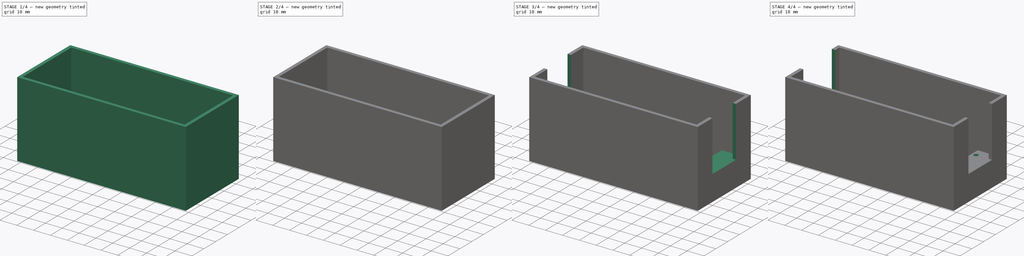
[diagram: build sequence overview — one tinted view per stage of 4, left to right]
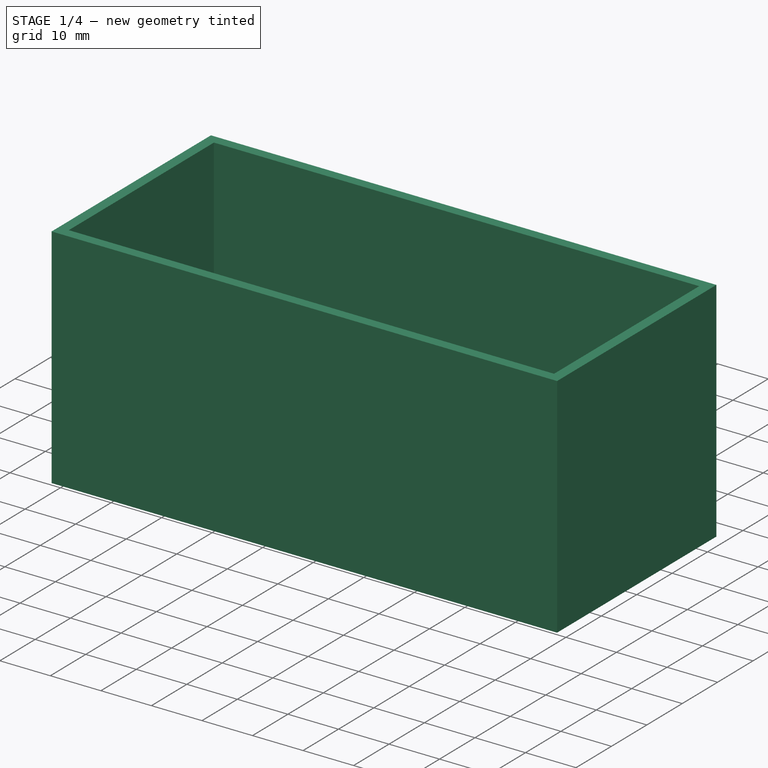
[diagram: stage 1 of 4 — iso view after this stage's code; geometry added in this stage tinted green]
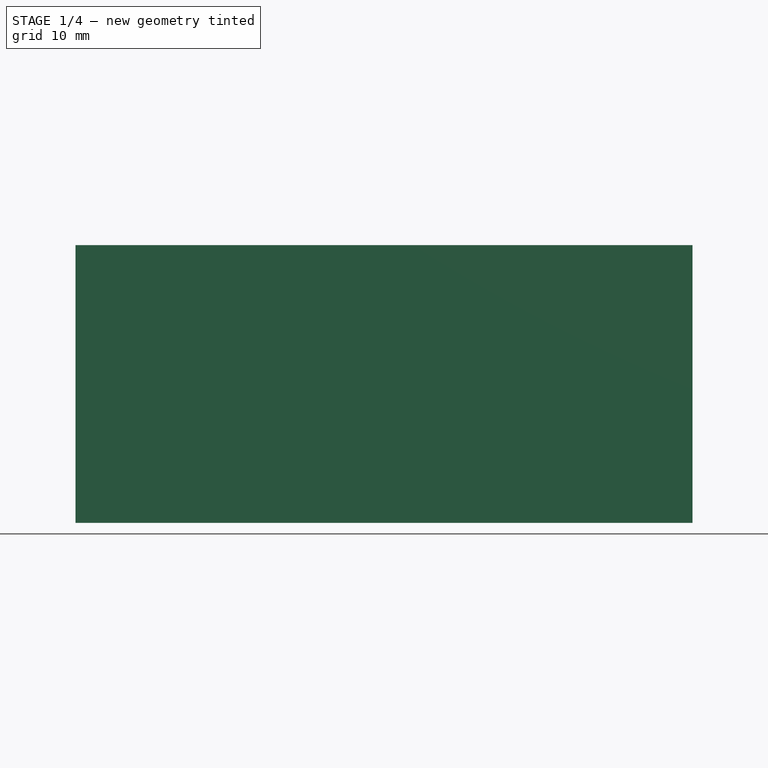
[diagram: stage 1 of 4 — front view after this stage's code; geometry added in this stage tinted green]
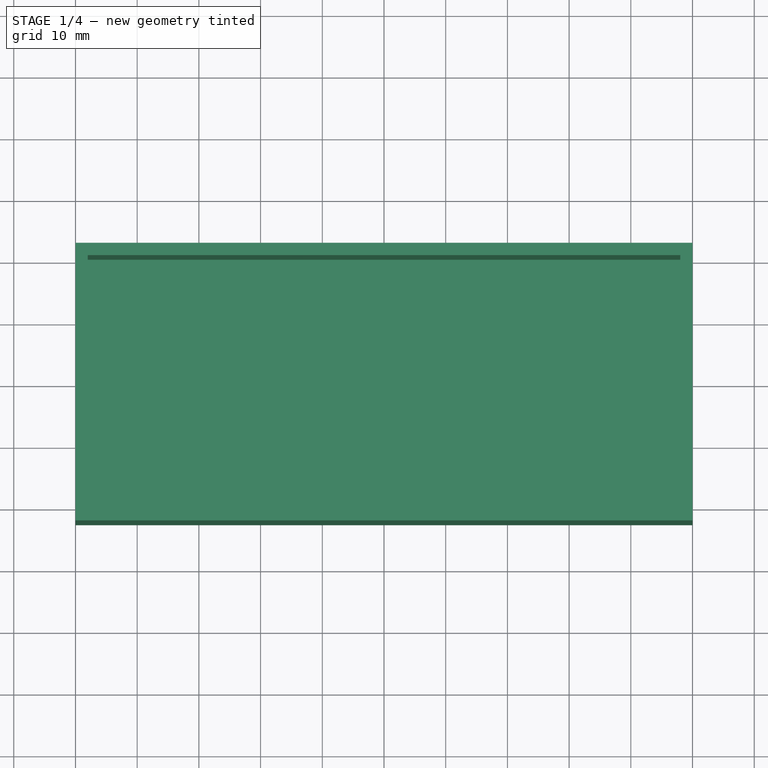
[diagram: stage 1 of 4 — top view after this stage's code; geometry added in this stage tinted green]
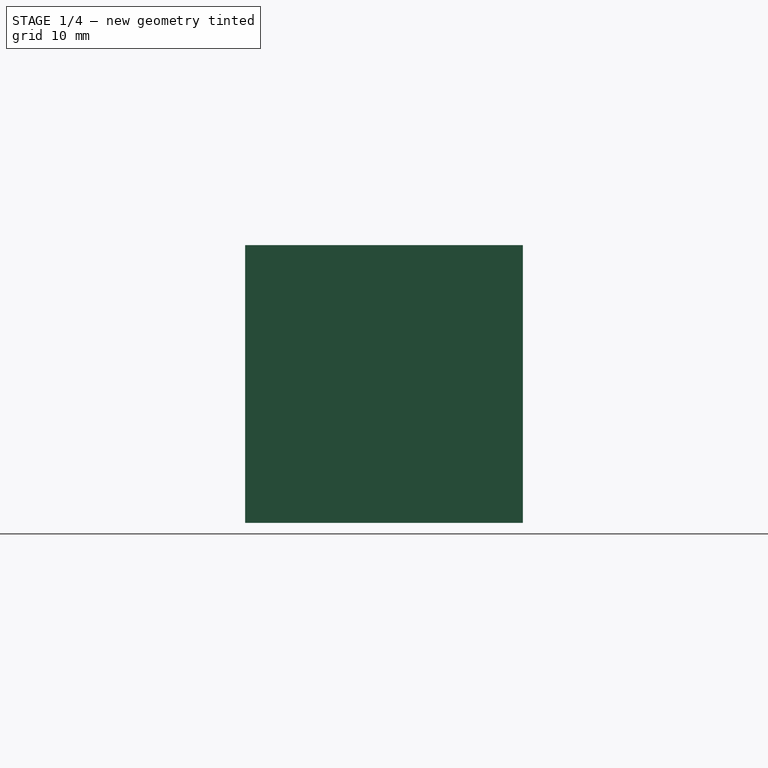
[diagram: stage 1 of 4 — right view after this stage's code; geometry added in this stage tinted green]
FCSTD DOCUMENT  (FreeCAD 0.19R22756 (Git))
Label: 12v-power-supply-holder-development
License: All rights reserved
LicenseURL: http://en.wikipedia.org/wiki/All_rights_reserved
objects: Sketcher::SketchObject×9, PartDesign::Pocket×6, PartDesign::Pad×3, PartDesign::Mirrored×1, PartDesign::Body×1
note: 29 computed .brp shape members not serialized (recipe doc carries the construction recipe); baked Part::Feature solids carry a one-line shape summary decoded from their .brp

FEATURE [Sketcher::SketchObject] Sketch
  MapMode = 5
  Support = -> [XY_Plane]
  expr: Constraints[11] = Constraints[8] / 2
  expr: Constraints[10] = Constraints[9] / 2
  sketch-geometry (4):
    g0: LineSegment StartX=-50 StartY=-22.5 StartZ=0 EndX=50 EndY=-22.5 EndZ=0
    g1: LineSegment StartX=50 StartY=-22.5 StartZ=0 EndX=50 EndY=22.5 EndZ=0
    g2: LineSegment StartX=50 StartY=22.5 StartZ=0 EndX=-50 EndY=22.5 EndZ=0
    g3: LineSegment StartX=-50 StartY=22.5 StartZ=0 EndX=-50 EndY=-22.5 EndZ=0
  constraints (12):
    c: Coincident(g0,g1)
    c: Coincident(g1,g2)
    c: Coincident(g2,g3)
    c: Coincident(g3,g0)
    c: Horizontal(g0)
    c: Horizontal(g2)
    c: Vertical(g1)
    c: Vertical(g3)
    c: Distance(g2) = 100
    c: Distance(g1) = 45
    c: DistanceY(g-1,g2) = 22.5
    c: DistanceX(g-2,g1) = 50
FEATURE [PartDesign::Pad] Pad
  Direction = (1,1,1)
  Length = 45
  Length2 = 100
  Profile = -> Sketch
  Type = 0
FEATURE [Sketcher::SketchObject] Sketch001
  ExternalGeometry = -> [Pad]
  MapMode = 5
  Placement = pos=(0,0,45) rot=(0,0,1;0rad)
  Support = -> [Pad]
  expr: Constraints[11] = Constraints[8]
  expr: Constraints[10] = Constraints[8]
  expr: Constraints[9] = Constraints[8]
  sketch-geometry (4):
    g0: LineSegment StartX=-48 StartY=-20.5 StartZ=0 EndX=48 EndY=-20.5 EndZ=0
    g1: LineSegment StartX=48 StartY=-20.5 StartZ=0 EndX=48 EndY=20.5 EndZ=0
    g2: LineSegment StartX=48 StartY=20.5 StartZ=0 EndX=-48 EndY=20.5 EndZ=0
    g3: LineSegment StartX=-48 StartY=20.5 StartZ=0 EndX=-48 EndY=-20.5 EndZ=0
  constraints (12):
    c: Coincident(g0,g1)
    c: Coincident(g1,g2)
    c: Coincident(g2,g3)
    c: Coincident(g3,g0)
    c: Horizontal(g0)
    c: Horizontal(g2)
    c: Vertical(g1)
    c: Vertical(g3)
    c: Distance(g2,g-3) = 2
    c: Distance(g2,g-4) = 2
    c: Distance(g0,g-5) = 2
    c: Distance(g0,g-6) = 2
FEATURE [PartDesign::Pocket] Pocket
  BaseFeature = -> Pad
  Length = 43
  Length2 = 100
  Profile = -> Sketch001
  Type = 0
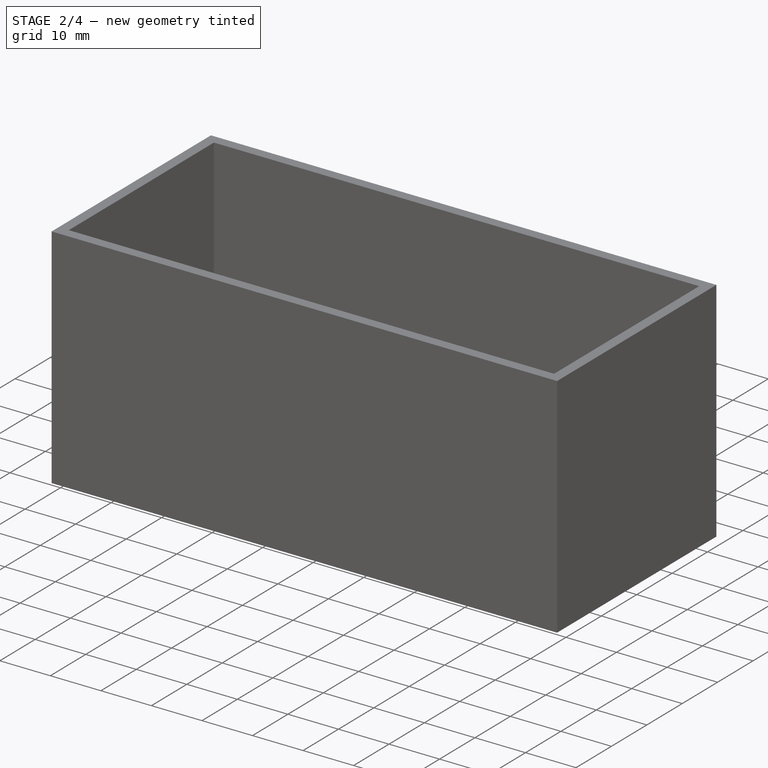
[diagram: stage 2 of 4 — iso view after this stage's code; geometry added in this stage tinted green]
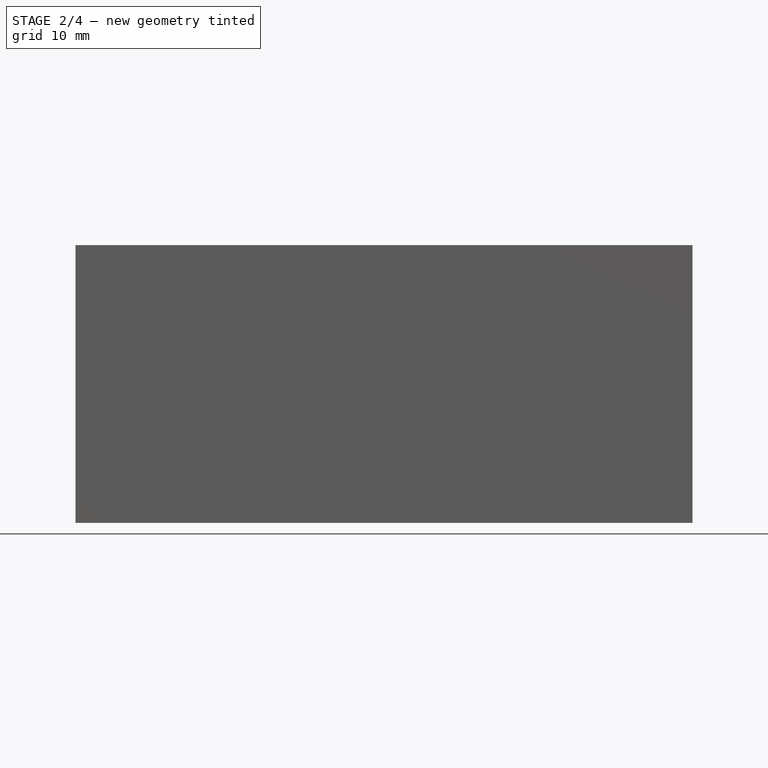
[diagram: stage 2 of 4 — front view after this stage's code; geometry added in this stage tinted green]
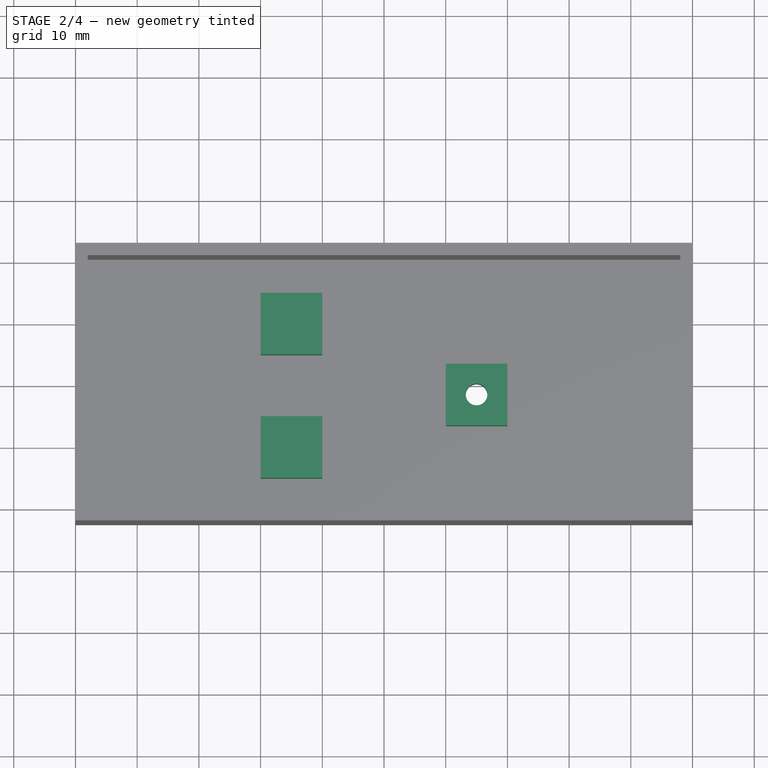
[diagram: stage 2 of 4 — top view after this stage's code; geometry added in this stage tinted green]
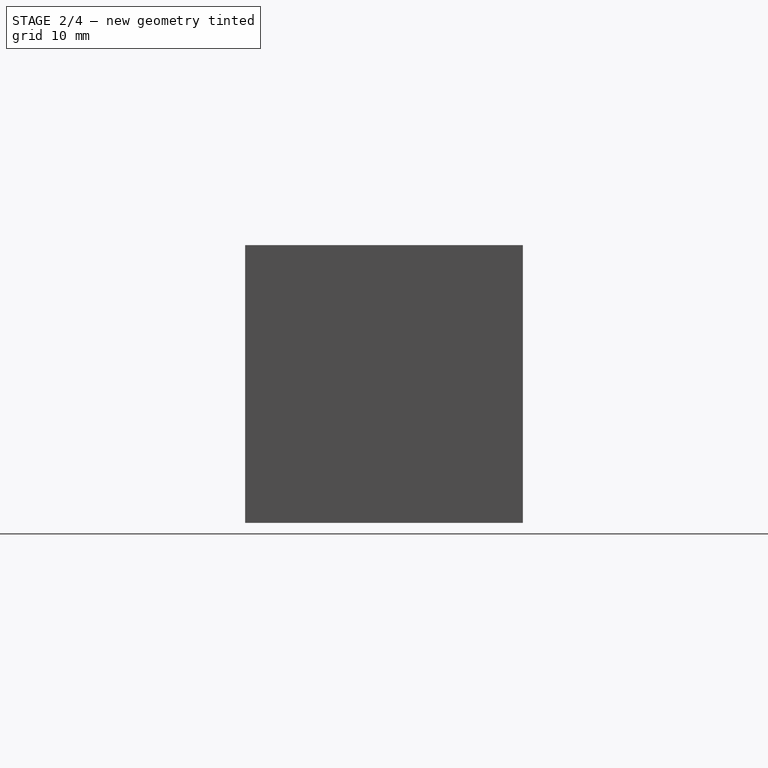
[diagram: stage 2 of 4 — right view after this stage's code; geometry added in this stage tinted green]
FEATURE [Sketcher::SketchObject] Sketch002
  ExternalGeometry = -> [Pocket]
  MapMode = 5
  Placement = pos=(0,0,2) rot=(0,0,1;0rad)
  Support = -> [Pocket]
  expr: Constraints[35] = Constraints[24]
  expr: Constraints[27] = Constraints[24]
  expr: Constraints[32] = Constraints[24] / 2 - 1.5mm
  expr: Constraints[29] = Constraints[24]
  expr: Constraints[26] = Constraints[24]
  expr: Constraints[31] = -Constraints[24] / 2
  expr: Constraints[30] = Constraints[24] * 3 - 2mm
  expr: Constraints[28] = Constraints[24]
  expr: Constraints[25] = Constraints[24]
  sketch-geometry (12):
    g0: LineSegment StartX=10 StartY=-6.5 StartZ=0 EndX=20 EndY=-6.5 EndZ=0
    g1: LineSegment StartX=20 StartY=-6.5 StartZ=0 EndX=20 EndY=3.5 EndZ=0
    g2: LineSegment StartX=20 StartY=3.5 StartZ=0 EndX=10 EndY=3.5 EndZ=0
    g3: LineSegment StartX=10 StartY=3.5 StartZ=0 EndX=10 EndY=-6.5 EndZ=0
    g4: LineSegment StartX=-20 StartY=15 StartZ=0 EndX=-10 EndY=15 EndZ=0
    g5: LineSegment StartX=-10 StartY=15 StartZ=0 EndX=-10 EndY=5 EndZ=0
    g6: LineSegment StartX=-10 StartY=5 StartZ=0 EndX=-20 EndY=5 EndZ=0
    g7: LineSegment StartX=-20 StartY=5 StartZ=0 EndX=-20 EndY=15 EndZ=0
    g8: LineSegment StartX=-20 StartY=-5 StartZ=0 EndX=-10 EndY=-5 EndZ=0
    g9: LineSegment StartX=-10 StartY=-5 StartZ=0 EndX=-10 EndY=-15 EndZ=0
    g10: LineSegment StartX=-10 StartY=-15 StartZ=0 EndX=-20 EndY=-15 EndZ=0
    g11: LineSegment StartX=-20 StartY=-15 StartZ=0 EndX=-20 EndY=-5 EndZ=0
  constraints (36):
    c: Coincident(g0,g1)
    c: Coincident(g1,g2)
    c: Coincident(g2,g3)
    c: Coincident(g3,g0)
    c: Horizontal(g0)
    c: Horizontal(g2)
    c: Vertical(g1)
    c: Vertical(g3)
    c: Coincident(g4,g5)
    c: Coincident(g5,g6)
    c: Coincident(g6,g7)
    c: Coincident(g7,g4)
    c: Horizontal(g4)
    c: Horizontal(g6)
    c: Vertical(g5)
    c: Vertical(g7)
    c: Coincident(g8,g9)
    c: Coincident(g9,g10)
    c: Coincident(g10,g11)
    c: Coincident(g11,g8)
    c: Horizontal(g8)
    c: Horizontal(g10)
    c: Vertical(g9)
    c: Vertical(g11)
    c: Distance(g2) = 10
    c: Distance(g1) = 10
    c: Distance(g4) = 10
    c: Distance(g5) = 10
    c: Distance(g9) = 10
    c: Distance(g8) = 10
    c: Distance(g0,g-3) = 28
    c: DistanceY(g-1,g8) = -5
    c: DistanceY(g-1,g2) = 3.5
    c: Distance(g6,g3) = 30
    c: Vertical(g8,g6)
    c: Distance(g5,g8) = 10
FEATURE [PartDesign::Pad] Pad001
  BaseFeature = -> Pocket
  Direction = (1,1,1)
  Length = 9
  Length2 = 100
  Profile = -> Sketch002
  Type = 0
FEATURE [Sketcher::SketchObject] Sketch003
  ExternalGeometry = -> [Pad001]
  MapMode = 5
  Placement = pos=(0,0,0) rot=(1,0,0;3.14159rad)
  Support = -> [Pad001]
  sketch-geometry (2):
    g0: Circle [constr] CenterX=15 CenterY=1.5 CenterZ=0 NormalX=0 NormalY=0 NormalZ=1 AngleXU=0 Radius=5
    g1: Circle CenterX=15 CenterY=1.5 CenterZ=0 NormalX=0 NormalY=0 NormalZ=1 AngleXU=0 Radius=3
  constraints (5):
    c: Tangent(g0,g-3)
    c: Tangent(g0,g-4)
    c: Tangent(g-5,g0)
    c: Coincident(g1,g0)
    c: Diameter(g1) = 6
FEATURE [PartDesign::Pocket] Pocket001
  BaseFeature = -> Pad001
  Length = 3
  Length2 = 100
  Profile = -> Sketch003
  Type = 0
FEATURE [Sketcher::SketchObject] Sketch004
  ExternalGeometry = -> [Pocket001]
  MapMode = 5
  Placement = pos=(0,0,3) rot=(1,0,0;3.14159rad)
  Support = -> [Pocket001]
  sketch-geometry (1):
    g0: Circle CenterX=15 CenterY=1.5 CenterZ=0 NormalX=0 NormalY=0 NormalZ=1 AngleXU=0 Radius=1.75
  constraints (2):
    c: Coincident(g0,g-3)
    c: Diameter(g0) = 3.5
FEATURE [PartDesign::Pocket] Pocket002
  BaseFeature = -> Pocket001
  Length = 5
  Length2 = 100
  Profile = -> Sketch004
  Type = 1
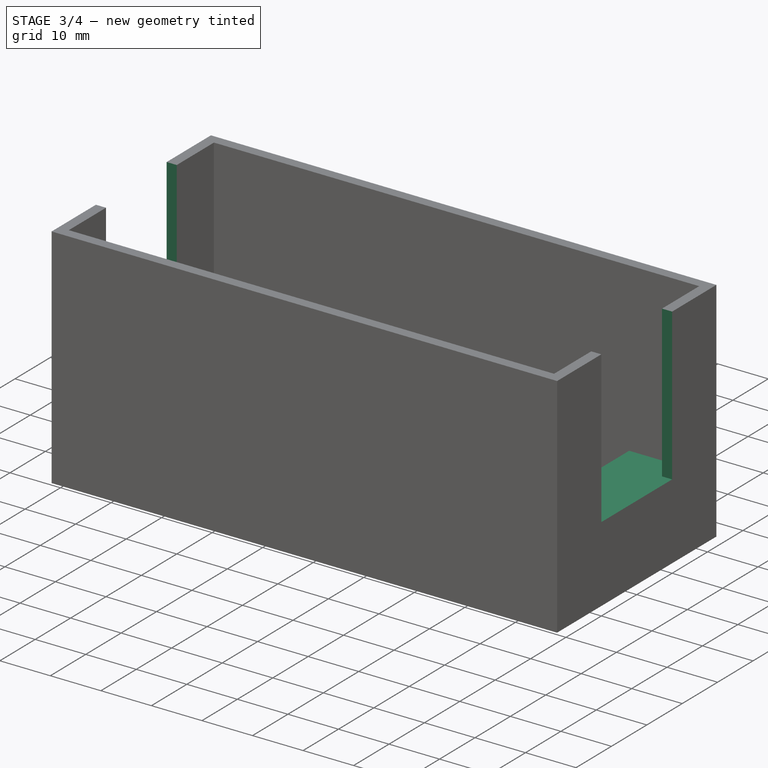
[diagram: stage 3 of 4 — iso view after this stage's code; geometry added in this stage tinted green]
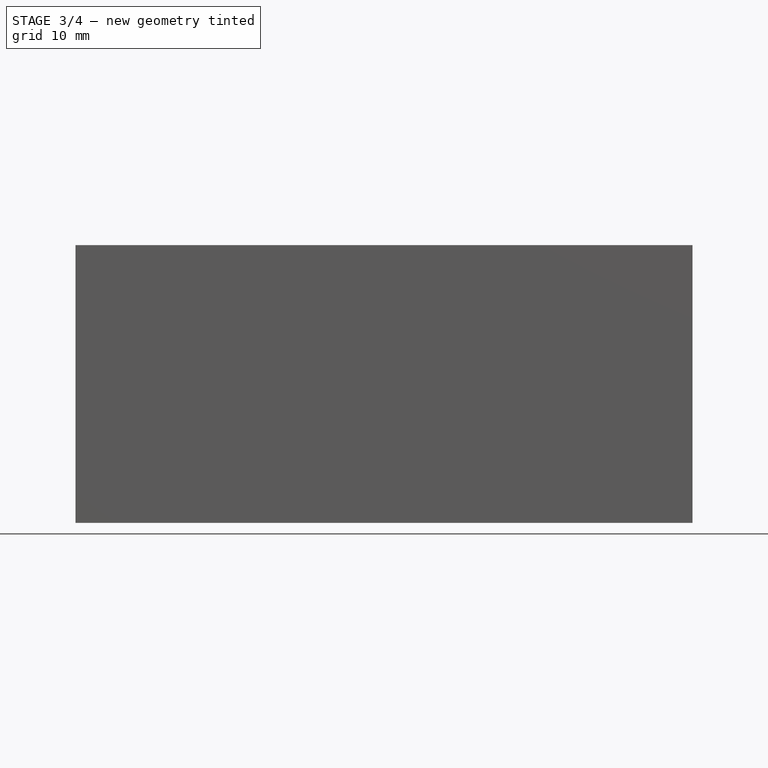
[diagram: stage 3 of 4 — front view after this stage's code; geometry added in this stage tinted green]
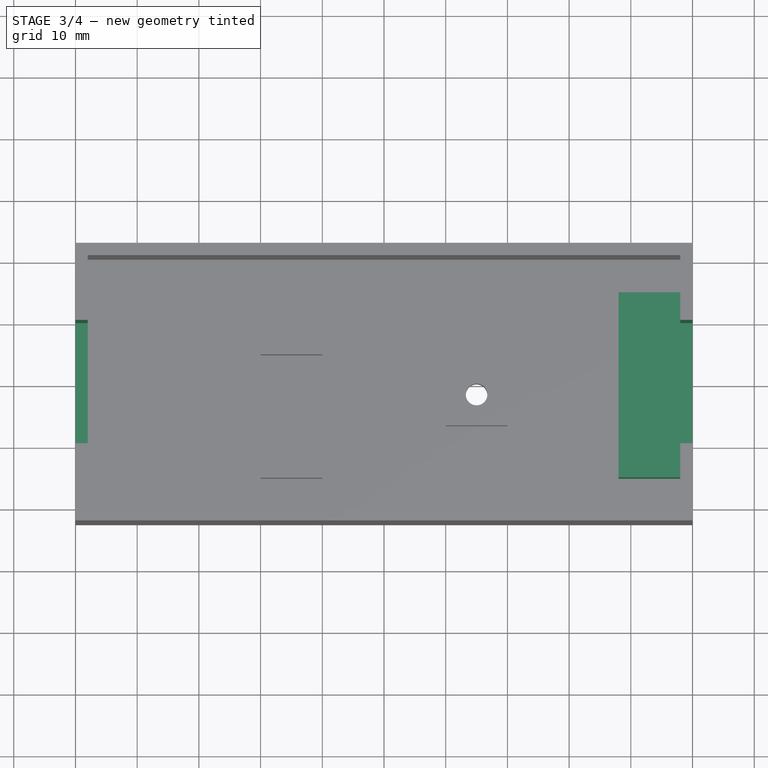
[diagram: stage 3 of 4 — top view after this stage's code; geometry added in this stage tinted green]
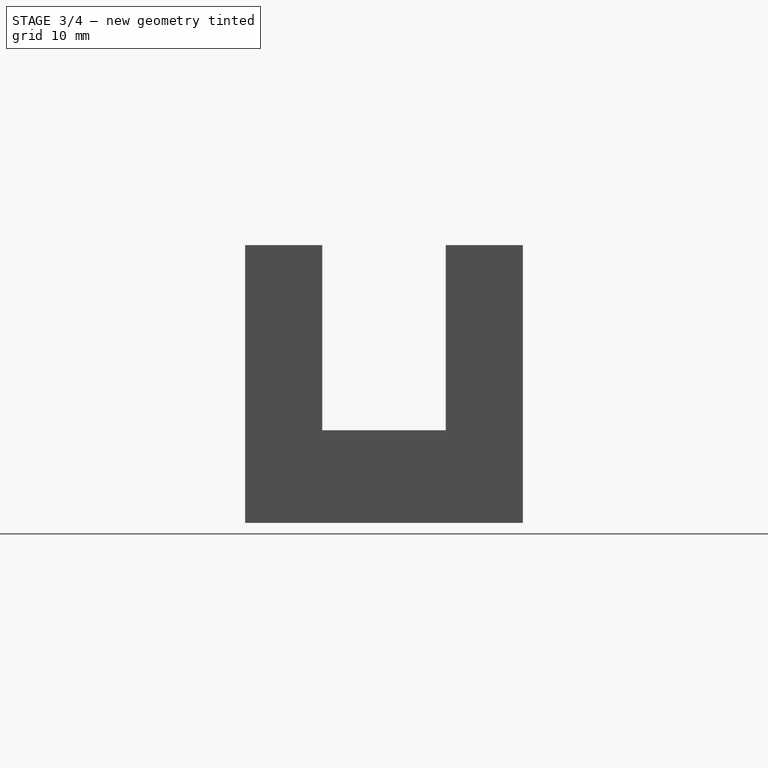
[diagram: stage 3 of 4 — right view after this stage's code; geometry added in this stage tinted green]
FEATURE [Sketcher::SketchObject] Sketch005
  ExternalGeometry = -> [Pocket002]
  MapMode = 5
  Placement = pos=(0,0,45) rot=(0,0,1;0rad)
  Support = -> [Pocket002]
  expr: Constraints[11] = Constraints[10] / 2
  sketch-geometry (4):
    g0: LineSegment StartX=48 StartY=-10 StartZ=0 EndX=50 EndY=-10 EndZ=0
    g1: LineSegment StartX=50 StartY=-10 StartZ=0 EndX=50 EndY=10 EndZ=0
    g2: LineSegment StartX=50 StartY=10 StartZ=0 EndX=48 EndY=10 EndZ=0
    g3: LineSegment StartX=48 StartY=10 StartZ=0 EndX=48 EndY=-10 EndZ=0
  constraints (12):
    c: Coincident(g0,g1)
    c: Coincident(g1,g2)
    c: Coincident(g2,g3)
    c: Coincident(g3,g0)
    c: Horizontal(g0)
    c: Horizontal(g2)
    c: Vertical(g1)
    c: Vertical(g3)
    c: PointOnObject(g0,g-3)
    c: PointOnObject(g1,g-4)
    c: Distance(g1) = 20
    c: DistanceY(g-1,g1) = 10
FEATURE [PartDesign::Pocket] Pocket003
  BaseFeature = -> Pocket002
  Length = 30
  Length2 = 100
  Profile = -> Sketch005
  Type = 0
FEATURE [PartDesign::Mirrored] Mirrored
  BaseFeature = -> Pocket003
  MirrorPlane = -> YZ_Plane
  Originals = -> [Pocket003]
FEATURE [Sketcher::SketchObject] Sketch006
  ExternalGeometry = -> [Mirrored]
  MapMode = 5
  Placement = pos=(0,0,2) rot=(0,0,1;0rad)
  Support = -> [Mirrored]
  sketch-geometry (4):
    g0: LineSegment StartX=48 StartY=15 StartZ=0 EndX=38 EndY=15 EndZ=0
    g1: LineSegment StartX=38 StartY=15 StartZ=0 EndX=38 EndY=-15 EndZ=0
    g2: LineSegment StartX=38 StartY=-15 StartZ=0 EndX=48 EndY=-15 EndZ=0
    g3: LineSegment StartX=48 StartY=-15 StartZ=0 EndX=48 EndY=15 EndZ=0
  constraints (12):
    c: Coincident(g0,g1)
    c: Coincident(g1,g2)
    c: Coincident(g2,g3)
    c: Coincident(g3,g0)
    c: Horizontal(g0)
    c: Horizontal(g2)
    c: Vertical(g1)
    c: Vertical(g3)
    c: PointOnObject(g0,g-3)
    c: Distance(g-5,g0) = 5
    c: Distance(g1) = 30
    c: Distance(g0,g3) = 10
FEATURE [PartDesign::Pad] Pad002
  BaseFeature = -> Mirrored
  Direction = (1,1,1)
  Length = 10
  Length2 = 100
  Profile = -> Sketch006
  Type = 3
  UpToFace = -> Mirrored [Face12]
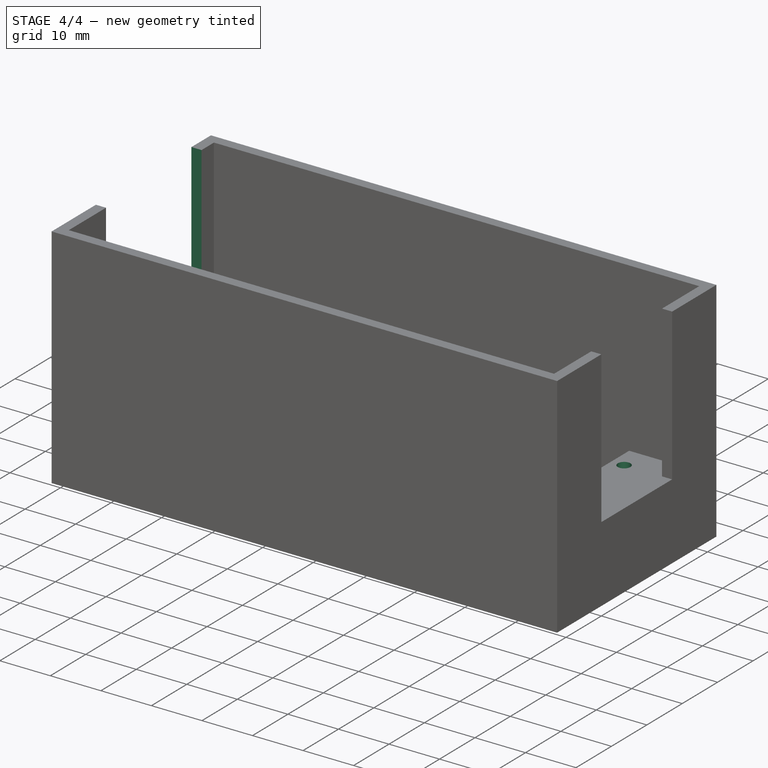
[diagram: stage 4 of 4 — iso view after this stage's code; geometry added in this stage tinted green]
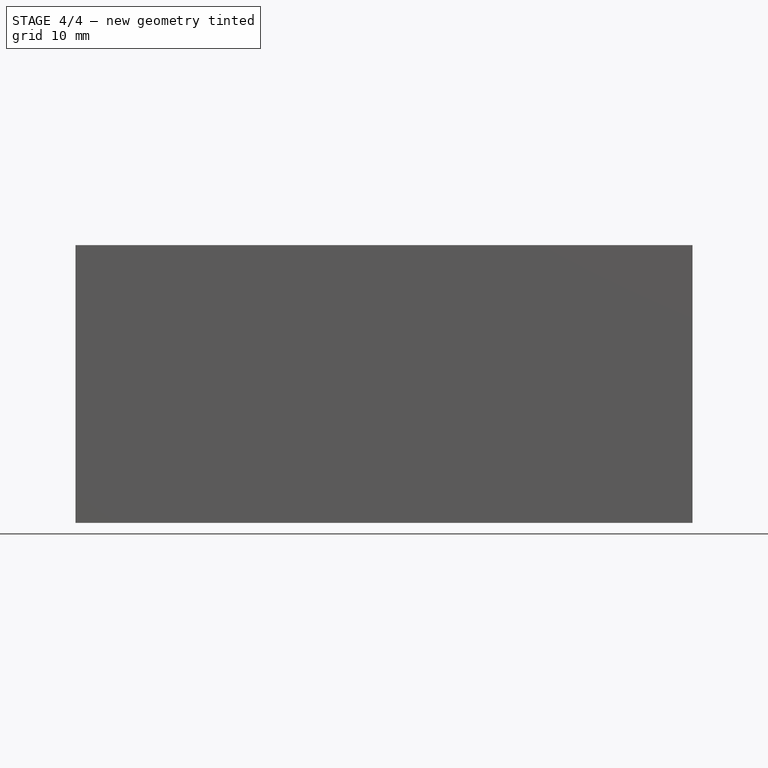
[diagram: stage 4 of 4 — front view after this stage's code; geometry added in this stage tinted green]
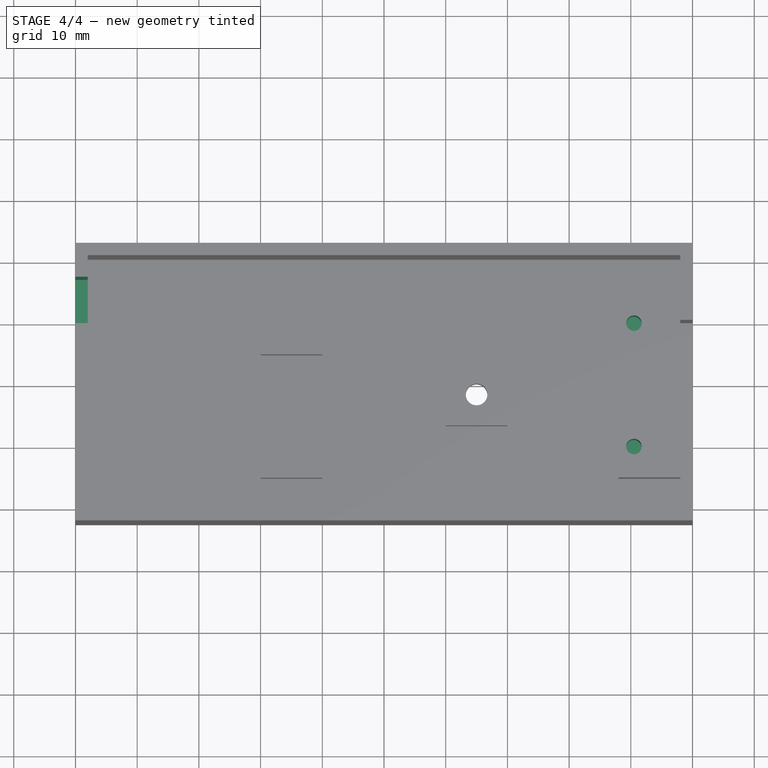
[diagram: stage 4 of 4 — top view after this stage's code; geometry added in this stage tinted green]
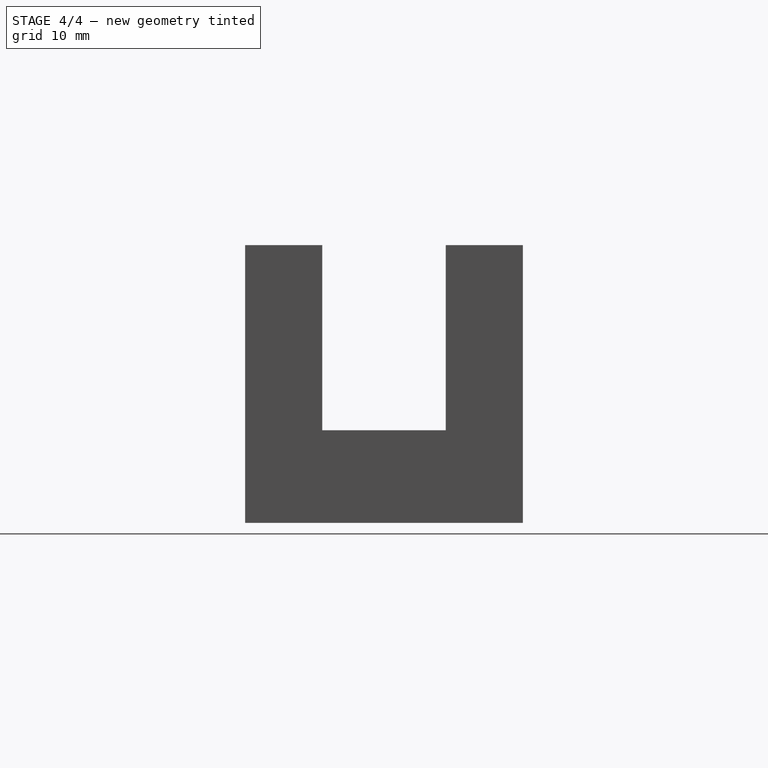
[diagram: stage 4 of 4 — right view after this stage's code; geometry added in this stage tinted green]
FEATURE [Sketcher::SketchObject] Sketch007
  ExternalGeometry = -> [Pad002]
  MapMode = 5
  Placement = pos=(0,0,15) rot=(0,0,1;0rad)
  Support = -> [Pad002]
  expr: Constraints[1] = Constraints[0]
  sketch-geometry (2):
    g0: Circle CenterX=40.5 CenterY=10 CenterZ=0 NormalX=0 NormalY=0 NormalZ=1 AngleXU=0 Radius=1.25
    g1: Circle CenterX=40.5 CenterY=-10 CenterZ=0 NormalX=0 NormalY=0 NormalZ=1 AngleXU=0 Radius=1.25
  constraints (6):
    c: Diameter(g0) = 2.5
    c: Diameter(g1) = 2.5
    c: Vertical(g0,g1)
    c: DistanceY(g-1,g0) = 10
    c: DistanceY(g1,g0) = 20
    c: Distance(g0,g-4) = 2.5
FEATURE [PartDesign::Pocket] Pocket004
  BaseFeature = -> Pad002
  Length = 12
  Length2 = 100
  Profile = -> Sketch007
  Type = 0
FEATURE [Sketcher::SketchObject] Sketch008
  ExternalGeometry = -> [Pocket004]
  MapMode = 5
  Placement = pos=(0,0,45) rot=(0,0,1;0rad)
  Support = -> [Pocket004]
  sketch-geometry (4):
    g0: LineSegment StartX=-50 StartY=10 StartZ=0 EndX=-48 EndY=10 EndZ=0
    g1: LineSegment StartX=-48 StartY=10 StartZ=0 EndX=-48 EndY=17 EndZ=0
    g2: LineSegment StartX=-48 StartY=17 StartZ=0 EndX=-50 EndY=17 EndZ=0
    g3: LineSegment StartX=-50 StartY=17 StartZ=0 EndX=-50 EndY=10 EndZ=0
  constraints (11):
    c: Coincident(g0,g1)
    c: Coincident(g1,g2)
    c: Coincident(g2,g3)
    c: Coincident(g3,g0)
    c: Horizontal(g0)
    c: Horizontal(g2)
    c: Vertical(g1)
    c: Vertical(g3)
    c: Coincident(g0,g-4)
    c: PointOnObject(g1,g-5)
    c: Distance(g3) = 7
FEATURE [PartDesign::Pocket] Pocket005
  BaseFeature = -> Pocket004
  Length = 0
  Length2 = 100
  Profile = -> Sketch008
  Type = 3
  UpToFace = -> Pocket004 [Face7]
FEATURE [PartDesign::Body] Body
  Group = -> [Sketch,Pad,Sketch001,Pocket,Sketch002,Pad001,Sketch003,Pocket001,Sketch004,Pocket002,Sketch005,Pocket003,Mirrored,Sketch006,Pad002,Sketch007,Pocket004,Sketch008,Pocket005]
  Origin = -> Origin
  Tip = -> Pocket005
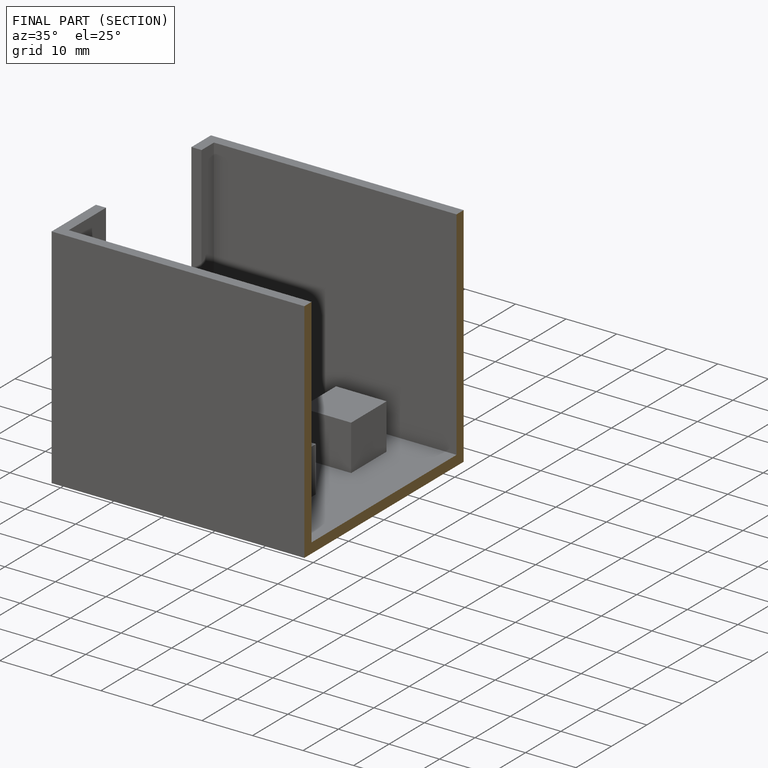
[diagram: finished part — half-section view (interior)]
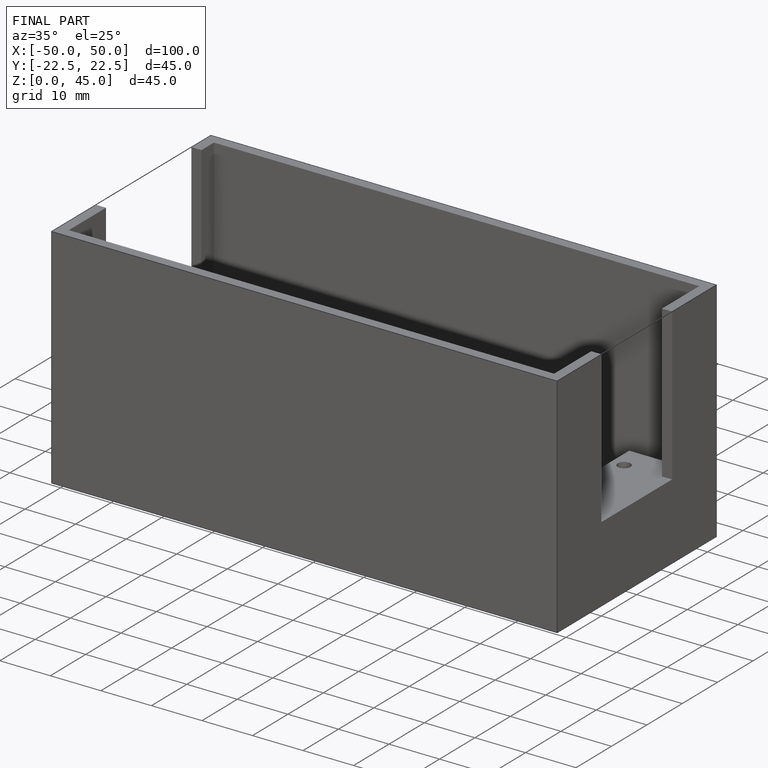
[diagram: finished part — iso view with bounding-box wireframe]
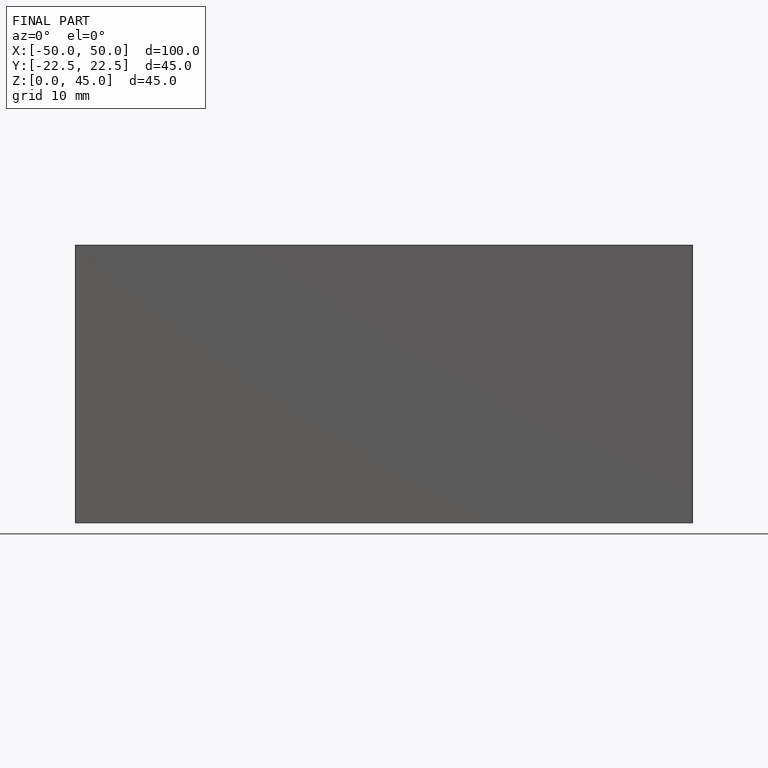
[diagram: finished part — front view with bounding-box wireframe]
